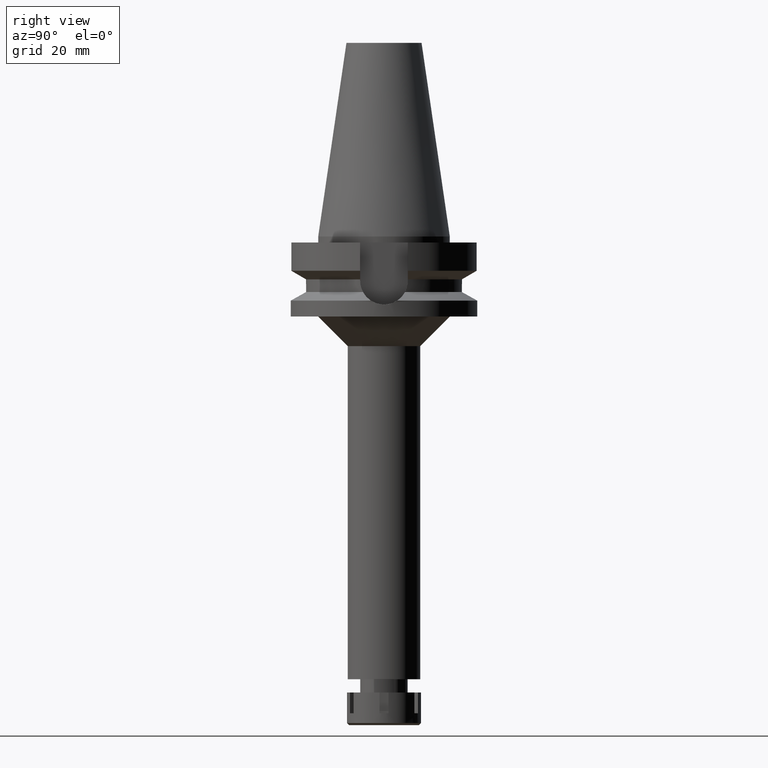
[diagram: clean part render]
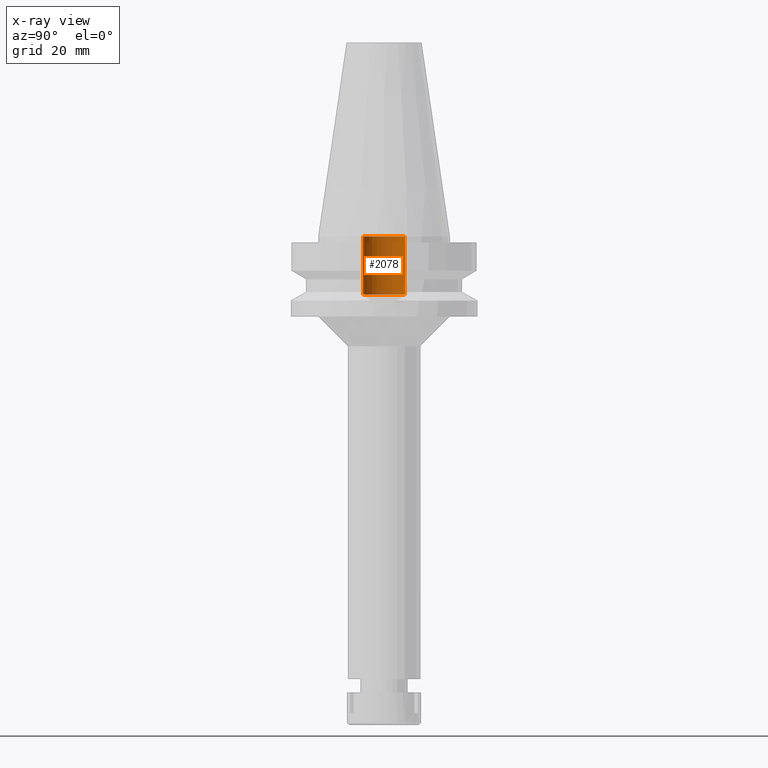
[diagram: x-ray — body ghosted, one internal face saturated and labeled with its STEP entity id]
A machine part, right view, then the same camera in x-ray: the body is ghosted and one INTERNAL B-rep face — a face not visible from any outside direction — is saturated and labeled: STEP entity #2078.
In plain terms, the highlighted cylindrical surface (edge-blend (fillet) strip) has radius 7.1 mm, axis along (0, 0, -1).
Its self-contained STEP definition (entity closure, byte-faithful):
#3 = DIRECTION ( 'NONE',  ( 0.0000000000000000000, -1.000000000000000000, 0.0000000000000000000 ) ) ;
#18 = DIRECTION ( 'NONE',  ( 0.0000000000000000000, 0.0000000000000000000, 1.000000000000000000 ) ) ;
#33 = CARTESIAN_POINT ( 'NONE',  ( 0.0000000000000000000, 7.100000000000000533, -19.59999999999999787 ) ) ;
#137 = AXIS2_PLACEMENT_3D ( 'NONE', #2259, #2245, #3 ) ;
#160 = VECTOR ( 'NONE', #18, 1000.000000000000000 ) ;
#231 = DIRECTION ( 'NONE',  ( 0.0000000000000000000, 0.0000000000000000000, -1.000000000000000000 ) ) ;
#291 = EDGE_CURVE ( 'NONE', #896, #3130, #754, .T. ) ;
#370 = DIRECTION ( 'NONE',  ( 0.0000000000000000000, -1.000000000000000000, 0.0000000000000000000 ) ) ;
#373 = CIRCLE ( 'NONE', #137, 7.100000000000000533 ) ;
#410 = CARTESIAN_POINT ( 'NONE',  ( 0.0000000000000000000, 7.100000000000000533, -19.59999999999999787 ) ) ;
#418 = ORIENTED_EDGE ( 'NONE', *, *, #2261, .T. ) ;
#486 = DIRECTION ( 'NONE',  ( 0.0000000000000000000, -1.000000000000000000, 0.0000000000000000000 ) ) ;
#587 = VERTEX_POINT ( 'NONE', #410 ) ;
#692 = VECTOR ( 'NONE', #1315, 1000.000000000000000 ) ;
#731 = VERTEX_POINT ( 'NONE', #3292 ) ;
#754 = LINE ( 'NONE', #3328, #692 ) ;
#847 = EDGE_CURVE ( 'NONE', #587, #731, #1728, .T. ) ;
#876 = AXIS2_PLACEMENT_3D ( 'NONE', #2154, #231, #486 ) ;
#896 = VERTEX_POINT ( 'NONE', #2258 ) ;
#1012 = FACE_OUTER_BOUND ( 'NONE', #1186, .T. ) ;
#1052 = AXIS2_PLACEMENT_3D ( 'NONE', #2647, #2974, #370 ) ;
#1186 = EDGE_LOOP ( 'NONE', ( #2431, #1278, #418, #1472 ) ) ;
#1278 = ORIENTED_EDGE ( 'NONE', *, *, #291, .F. ) ;
#1315 = DIRECTION ( 'NONE',  ( 0.0000000000000000000, 0.0000000000000000000, 1.000000000000000000 ) ) ;
#1472 = ORIENTED_EDGE ( 'NONE', *, *, #847, .T. ) ;
#1728 = LINE ( 'NONE', #33, #160 ) ;
#2078 = ADVANCED_FACE ( 'NONE', ( #1012 ), #2663, .F. ) ;
#2154 = CARTESIAN_POINT ( 'NONE',  ( 0.0000000000000000000, 2.162971176654000071E-14, -19.59999999999999787 ) ) ;
#2245 = DIRECTION ( 'NONE',  ( 0.0000000000000000000, 0.0000000000000000000, -1.000000000000000000 ) ) ;
#2258 = CARTESIAN_POINT ( 'NONE',  ( 0.0000000000000000000, -7.100000000000000533, -19.59999999999999787 ) ) ;
#2259 = CARTESIAN_POINT ( 'NONE',  ( 0.0000000000000000000, 2.162971176654000071E-14, 9.947598300640998705E-14 ) ) ;
#2261 = EDGE_CURVE ( 'NONE', #896, #587, #2524, .T. ) ;
#2431 = ORIENTED_EDGE ( 'NONE', *, *, #3475, .F. ) ;
#2524 = CIRCLE ( 'NONE', #876, 7.100000000000000533 ) ;
#2647 = CARTESIAN_POINT ( 'NONE',  ( 0.0000000000000000000, 2.162971176654000071E-14, 76.61999999999999034 ) ) ;
#2663 = CYLINDRICAL_SURFACE ( 'NONE', #1052, 7.100000000000000533 ) ;
#2948 = CARTESIAN_POINT ( 'NONE',  ( 0.0000000000000000000, -7.100000000000000533, 9.947598300640998705E-14 ) ) ;
#2974 = DIRECTION ( 'NONE',  ( 0.0000000000000000000, 0.0000000000000000000, -1.000000000000000000 ) ) ;
#3130 = VERTEX_POINT ( 'NONE', #2948 ) ;
#3292 = CARTESIAN_POINT ( 'NONE',  ( 0.0000000000000000000, 7.100000000000000533, 9.947598300640998705E-14 ) ) ;
#3328 = CARTESIAN_POINT ( 'NONE',  ( 0.0000000000000000000, -7.100000000000000533, -19.59999999999999787 ) ) ;
#3475 = EDGE_CURVE ( 'NONE', #3130, #731, #373, .T. ) ;